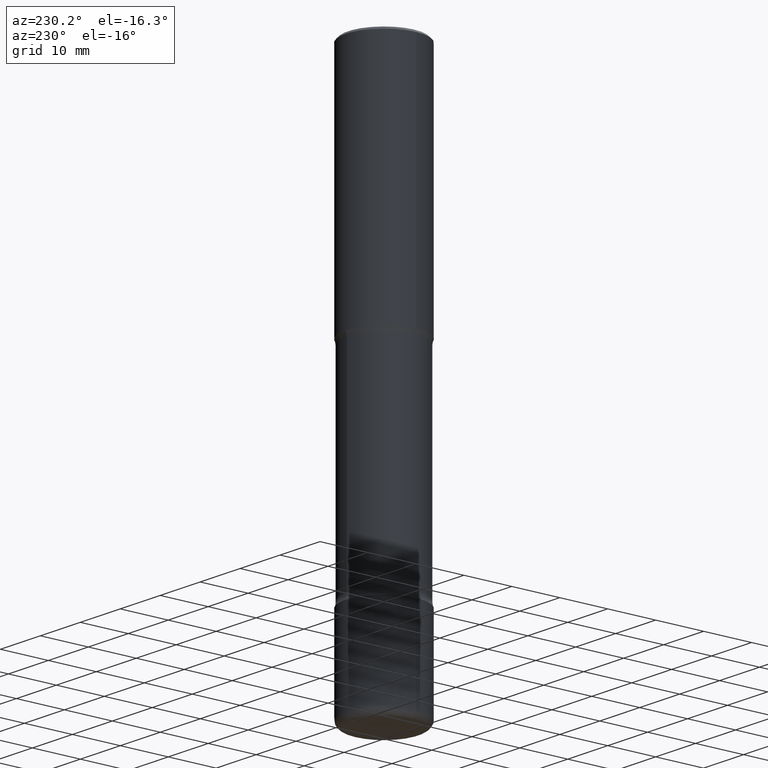
[diagram: clean part render]
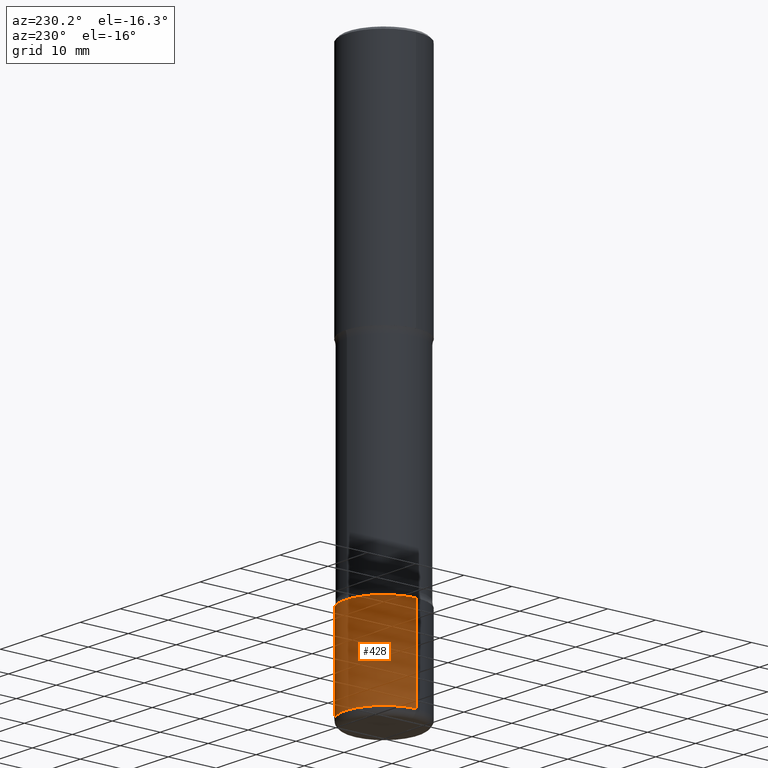
[diagram: same view with one face highlighted and labeled with its STEP entity id]
A machine part, auxiliary view. The second image highlights one B-rep face of the part: STEP entity #428.
In plain terms, the highlighted cylindrical surface (partial cylindrical patch) has radius 7.9997 mm, axis along (-0, 0, 1).
Its self-contained STEP definition (entity closure, byte-faithful):
#4 = CARTESIAN_POINT ( 'NONE',  ( 0.3149500000000002853, -2.199284095337291843E-15, 1.535751875536931531E-29 ) ) ;
#38 = DIRECTION ( 'NONE',  ( 1.000000000000000000, -6.982962677686267499E-15, 4.876176775795936353E-29 ) ) ;
#42 = CYLINDRICAL_SURFACE ( 'NONE', #375, 0.3149500000000002853 ) ;
#57 = EDGE_LOOP ( 'NONE', ( #264, #543, #503, #247 ) ) ;
#75 = CIRCLE ( 'NONE', #397, 0.3149500000000002298 ) ;
#79 = VERTEX_POINT ( 'NONE', #312 ) ;
#84 = DIRECTION ( 'NONE',  ( -2.445468806185136877E-29, 3.491481338843145188E-15, 1.000000000000000000 ) ) ;
#95 = VERTEX_POINT ( 'NONE', #316 ) ;
#138 = DIRECTION ( 'NONE',  ( -2.445468806185136597E-29, 3.491481338843145583E-15, 1.000000000000000000 ) ) ;
#153 = DIRECTION ( 'NONE',  ( 1.000000000000000000, -6.982962677686264344E-15, 0.000000000000000000 ) ) ;
#157 = VECTOR ( 'NONE', #432, 39.37007874015748143 ) ;
#167 = LINE ( 'NONE', #172, #240 ) ;
#172 = CARTESIAN_POINT ( 'NONE',  ( -0.3149500000000002853, 2.237854346276437562E-15, -1.549218606675783797E-29 ) ) ;
#192 = CARTESIAN_POINT ( 'NONE',  ( 0.3149500000000003963, -1.780096845795788810E-14, -4.468499999999999694 ) ) ;
#211 = FACE_OUTER_BOUND ( 'NONE', #57, .T. ) ;
#240 = VECTOR ( 'NONE', #84, 39.37007874015748143 ) ;
#247 = ORIENTED_EDGE ( 'NONE', *, *, #369, .F. ) ;
#264 = ORIENTED_EDGE ( 'NONE', *, *, #408, .T. ) ;
#288 = DIRECTION ( 'NONE',  ( 1.000000000000000000, -6.982962677686269866E-15, 0.000000000000000000 ) ) ;
#296 = CARTESIAN_POINT ( 'NONE',  ( 9.146542428893648262E-29, -1.305883850354113437E-14, -3.740200000000000191 ) ) ;
#302 = EDGE_CURVE ( 'NONE', #522, #95, #75, .T. ) ;
#312 = CARTESIAN_POINT ( 'NONE',  ( -0.3149500000000003963, -1.336383001634415593E-14, -4.468499999999999694 ) ) ;
#316 = CARTESIAN_POINT ( 'NONE',  ( -0.3149500000000002298, -1.209240708680442637E-14, -3.740200000000000191 ) ) ;
#355 = CARTESIAN_POINT ( 'NONE',  ( 0.3149500000000002298, -1.525812259887842581E-14, -3.740200000000000191 ) ) ;
#368 = AXIS2_PLACEMENT_3D ( 'NONE', #427, #423, #288 ) ;
#369 = EDGE_CURVE ( 'NONE', #552, #522, #557, .T. ) ;
#375 = AXIS2_PLACEMENT_3D ( 'NONE', #520, #138, #38 ) ;
#397 = AXIS2_PLACEMENT_3D ( 'NONE', #296, #471, #153 ) ;
#408 = EDGE_CURVE ( 'NONE', #552, #79, #540, .T. ) ;
#423 = DIRECTION ( 'NONE',  ( -2.445468806185136597E-29, 3.491481338843145583E-15, 1.000000000000000000 ) ) ;
#427 = CARTESIAN_POINT ( 'NONE',  ( 1.092757736043828165E-28, -1.560168436262059349E-14, -4.468499999999999694 ) ) ;
#428 = ADVANCED_FACE ( 'NONE', ( #211 ), #42, .T. ) ;
#432 = DIRECTION ( 'NONE',  ( -2.445468806185136877E-29, 3.491481338843145188E-15, 1.000000000000000000 ) ) ;
#457 = EDGE_CURVE ( 'NONE', #79, #95, #167, .T. ) ;
#471 = DIRECTION ( 'NONE',  ( -2.445468806185136597E-29, 3.491481338843145583E-15, 1.000000000000000000 ) ) ;
#503 = ORIENTED_EDGE ( 'NONE', *, *, #302, .F. ) ;
#520 = CARTESIAN_POINT ( 'NONE',  ( 0.000000000000000000, 0.000000000000000000, 0.000000000000000000 ) ) ;
#522 = VERTEX_POINT ( 'NONE', #355 ) ;
#540 = CIRCLE ( 'NONE', #368, 0.3149500000000002853 ) ;
#543 = ORIENTED_EDGE ( 'NONE', *, *, #457, .T. ) ;
#552 = VERTEX_POINT ( 'NONE', #192 ) ;
#557 = LINE ( 'NONE', #4, #157 ) ;